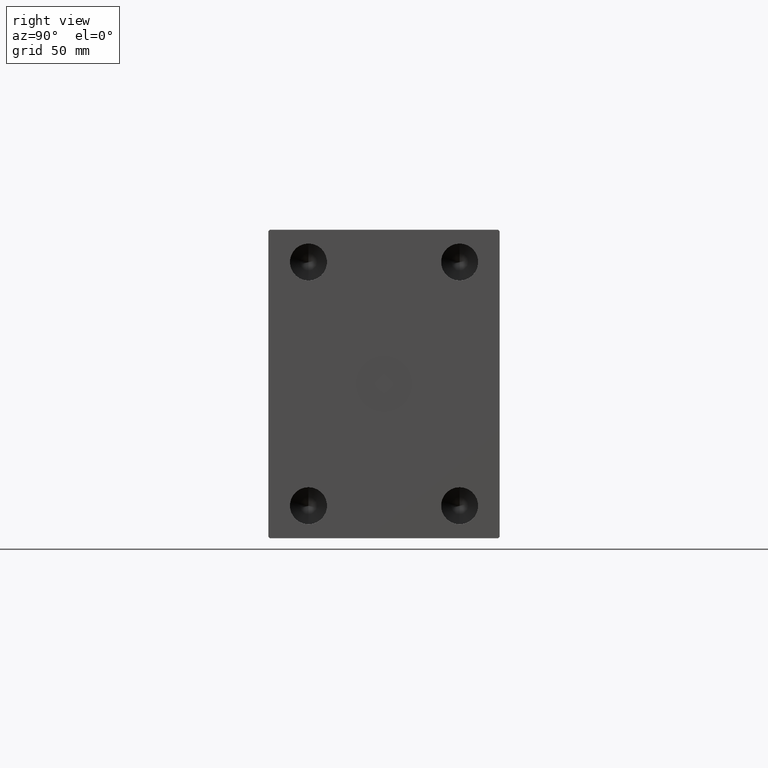
[diagram: clean part render]
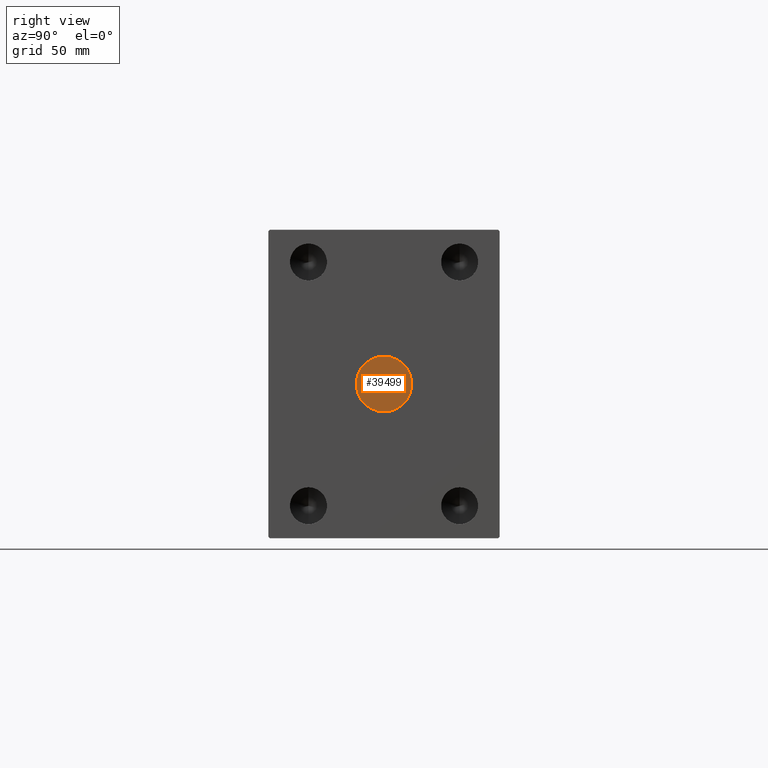
[diagram: same view with one face highlighted and labeled with its STEP entity id]
A machine part, right view. The second image highlights one B-rep face of the part: STEP entity #39499.
In plain terms, the highlighted planar face has unit normal (1, 0, 0).
Its self-contained STEP definition (entity closure, byte-faithful):
#151 = AXIS2_PLACEMENT_3D ( 'NONE', #9436, #26798, #16562 ) ;
#805 = CIRCLE ( 'NONE', #32807, 18.00000000000000000 ) ;
#5296 = DIRECTION ( 'NONE',  ( 1.000000000000000000, 0.000000000000000000, 0.000000000000000000 ) ) ;
#7621 = AXIS2_PLACEMENT_3D ( 'NONE', #38435, #5296, #35335 ) ;
#9436 = CARTESIAN_POINT ( 'NONE',  ( 387.8000000000000114, 0.000000000000000000, 0.000000000000000000 ) ) ;
#11980 = ORIENTED_EDGE ( 'NONE', *, *, #21470, .T. ) ;
#12650 = EDGE_CURVE ( 'NONE', #20848, #25645, #805, .T. ) ;
#14745 = CARTESIAN_POINT ( 'NONE',  ( 387.8000000000000114, 0.000000000000000000, 0.000000000000000000 ) ) ;
#16562 = DIRECTION ( 'NONE',  ( 0.000000000000000000, 0.000000000000000000, -1.000000000000000000 ) ) ;
#18731 = DIRECTION ( 'NONE',  ( 1.000000000000000000, 0.000000000000000000, 0.000000000000000000 ) ) ;
#20848 = VERTEX_POINT ( 'NONE', #38941 ) ;
#21470 = EDGE_CURVE ( 'NONE', #25645, #20848, #25728, .T. ) ;
#21984 = PLANE ( 'NONE',  #7621 ) ;
#25097 = FACE_OUTER_BOUND ( 'NONE', #30077, .T. ) ;
#25645 = VERTEX_POINT ( 'NONE', #31722 ) ;
#25728 = CIRCLE ( 'NONE', #151, 18.00000000000000000 ) ;
#26254 = ORIENTED_EDGE ( 'NONE', *, *, #12650, .T. ) ;
#26798 = DIRECTION ( 'NONE',  ( 1.000000000000000000, 0.000000000000000000, 0.000000000000000000 ) ) ;
#30077 = EDGE_LOOP ( 'NONE', ( #11980, #26254 ) ) ;
#31722 = CARTESIAN_POINT ( 'NONE',  ( 387.8000000000000114, 0.000000000000000000, -18.00000000000000000 ) ) ;
#32807 = AXIS2_PLACEMENT_3D ( 'NONE', #14745, #18731, #35428 ) ;
#35335 = DIRECTION ( 'NONE',  ( 0.000000000000000000, 0.000000000000000000, -1.000000000000000000 ) ) ;
#35428 = DIRECTION ( 'NONE',  ( 0.000000000000000000, 0.000000000000000000, -1.000000000000000000 ) ) ;
#38435 = CARTESIAN_POINT ( 'NONE',  ( 387.8000000000000114, 0.000000000000000000, 0.000000000000000000 ) ) ;
#38941 = CARTESIAN_POINT ( 'NONE',  ( 387.8000000000000114, 2.204364238465235428E-15, 18.00000000000000000 ) ) ;
#39499 = ADVANCED_FACE ( 'NONE', ( #25097 ), #21984, .T. ) ;